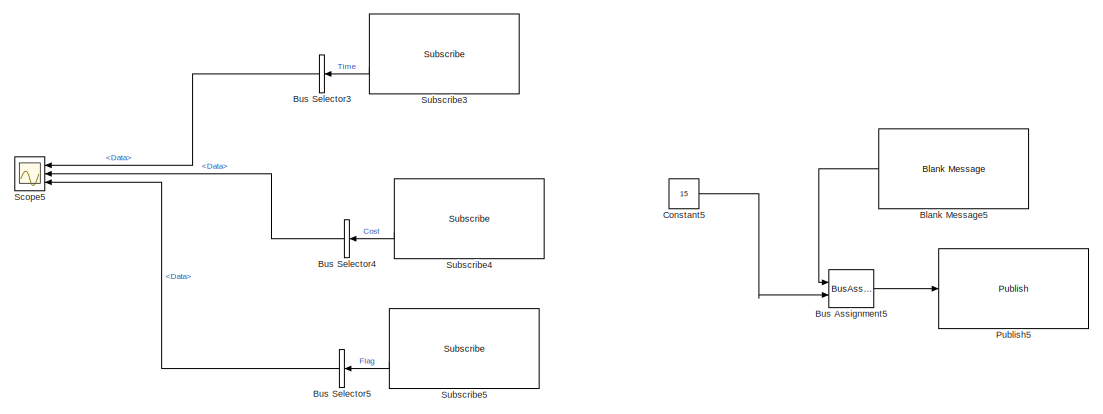
[diagram: root canvas - part 1/5, top center region]
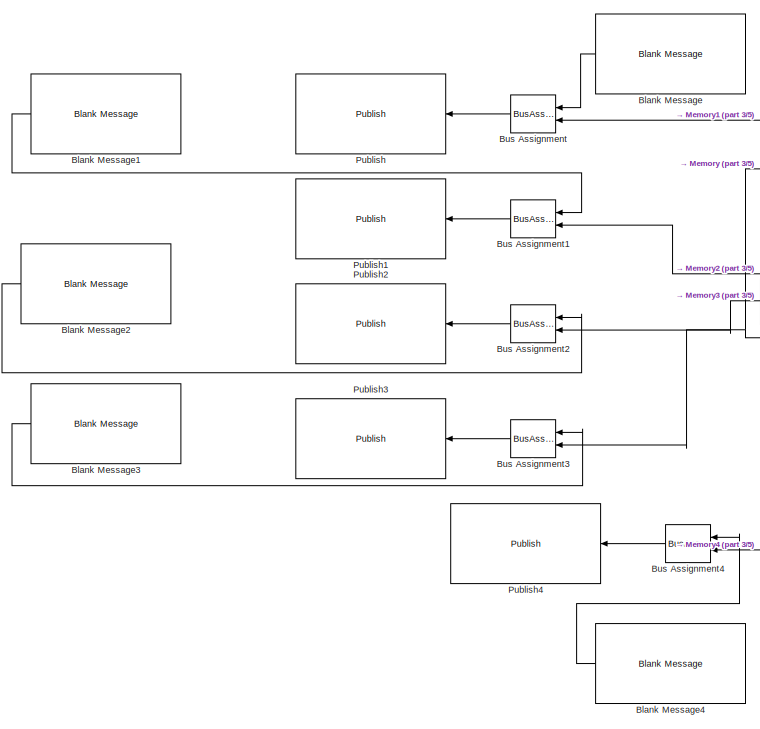
[diagram: root canvas - part 2/5, middle left region]
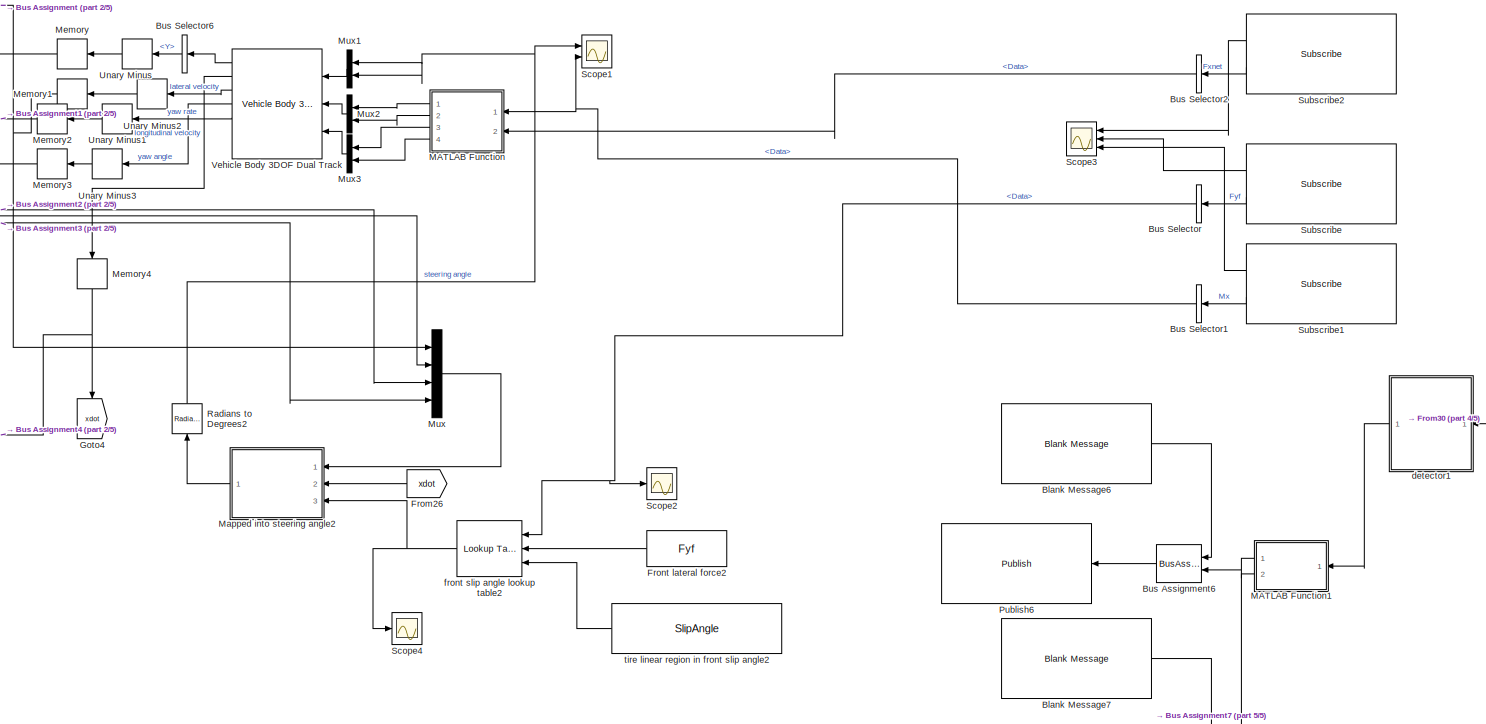
[diagram: root canvas - part 3/5, central region]
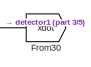
[diagram: root canvas - part 4/5, bottom right region]
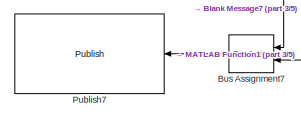
[diagram: root canvas - part 5/5, bottom right region]
MODEL slx_8d183aeda231
KIND model
CONFIG AbsTol = auto
CONFIG EnableMultiTasking = off
CONFIG FixedStep = auto
CONFIG MaxStep = auto
CONFIG MinStep = auto
CONFIG RelTol = 1e-3
CONFIG SampleTimeConstraint = Unconstrained
CONFIG SolverName = VariableStepAuto
CONFIG StartTime = 0.0
CONFIG StopTime = 10.0
BLOCK [Reference] Blank Message  REF=robotlib/Blank Message
  Ports = [0, 1]
  SourceBlock = robotlib/Blank Message
  SourceProductBaseCode = RR
  SourceType = ROS Blank Message
BLOCK [Reference] Blank Message1  REF=robotlib/Blank Message
  Ports = [0, 1]
  SourceBlock = robotlib/Blank Message
  SourceProductBaseCode = RR
  SourceType = ROS Blank Message
BLOCK [Reference] Blank Message2  REF=robotlib/Blank Message
  Ports = [0, 1]
  SourceBlock = robotlib/Blank Message
  SourceProductBaseCode = RR
  SourceType = ROS Blank Message
BLOCK [Reference] Blank Message3  REF=robotlib/Blank Message
  Ports = [0, 1]
  SourceBlock = robotlib/Blank Message
  SourceProductBaseCode = RR
  SourceType = ROS Blank Message
BLOCK [Reference] Blank Message4  REF=robotlib/Blank Message
  Ports = [0, 1]
  SourceBlock = robotlib/Blank Message
  SourceProductBaseCode = RR
  SourceType = ROS Blank Message
BLOCK [Reference] Blank Message5  REF=robotlib/Blank Message
  Ports = [0, 1]
  SourceBlock = robotlib/Blank Message
  SourceProductBaseCode = RR
  SourceType = ROS Blank Message
BLOCK [Reference] Blank Message6  REF=robotlib/Blank Message
  Ports = [0, 1]
  SourceBlock = robotlib/Blank Message
  SourceProductBaseCode = RR
  SourceType = ROS Blank Message
BLOCK [Reference] Blank Message7  REF=robotlib/Blank Message
  Ports = [0, 1]
  SourceBlock = robotlib/Blank Message
  SourceProductBaseCode = RR
  SourceType = ROS Blank Message
BLOCK [BusAssignment] Bus Assignment
  AssignedSignals = Data
  Ports = [2, 1]
BLOCK [BusAssignment] Bus Assignment1
  AssignedSignals = Data
  Ports = [2, 1]
BLOCK [BusAssignment] Bus Assignment2
  AssignedSignals = Data
  Ports = [2, 1]
BLOCK [BusAssignment] Bus Assignment3
  AssignedSignals = Data
  Ports = [2, 1]
BLOCK [BusAssignment] Bus Assignment4
  AssignedSignals = Data
  Ports = [2, 1]
BLOCK [BusAssignment] Bus Assignment5
  AssignedSignals = Data
  Ports = [2, 1]
BLOCK [BusAssignment] Bus Assignment6
  AssignedSignals = Data
  Ports = [2, 1]
BLOCK [BusAssignment] Bus Assignment7
  AssignedSignals = Data
  Ports = [2, 1]
BLOCK [BusSelector] Bus Selector
  OutputSignals = Data
  Ports = [1, 1]
BLOCK [BusSelector] Bus Selector1
  OutputSignals = Data
  Ports = [1, 1]
BLOCK [BusSelector] Bus Selector2
  OutputSignals = Data
  Ports = [1, 1]
BLOCK [BusSelector] Bus Selector3
  OutputSignals = Data
  Ports = [1, 1]
BLOCK [BusSelector] Bus Selector4
  OutputSignals = Data
  Ports = [1, 1]
BLOCK [BusSelector] Bus Selector5
  OutputSignals = Data
  Ports = [1, 1]
BLOCK [BusSelector] Bus Selector6
  OutputSignals = InertFrm.Cg.Disp.Y
  Ports = [1, 1]
BLOCK [Constant] Constant5
  Value = 15
BLOCK [From] From26
  GotoTag = xdot
BLOCK [From] From30
  GotoTag = xdot
BLOCK [Constant] Front lateral force2
  Value = Fyf
BLOCK [Goto] Goto4
  GotoTag = xdot
  NameLocation = left
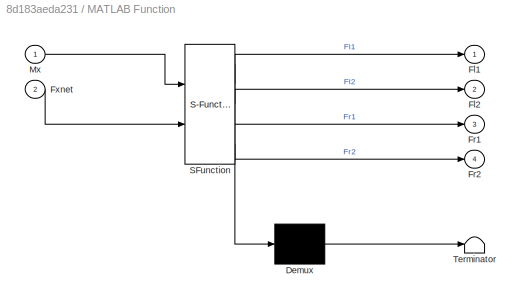
BLOCK [SubSystem] MATLAB Function
  ErrorFcn = Stateflow.Translate.translate
  PermitHierarchicalResolution = ExplicitOnly
  Ports = [2, 4]
  RequestExecContextInheritance = off
  SFBlockType = MATLAB Function
  TreatAsAtomicUnit = on
BLOCK [Demux] MATLAB Function/ Demux 
  Outputs = 1
  Ports = [1, 1]
BLOCK [S-Function] MATLAB Function/ SFunction 
  EnableBusSupport = on
  FunctionName = sf_sfun
  PortCounts = [2 5]
  Ports = [2, 5]
  SFcnIsStateOwnerBlock = off
  SFunctionDeploymentMode = off
  Tag = Stateflow S-Function 16
BLOCK [Terminator] MATLAB Function/ Terminator 
BLOCK [Outport] MATLAB Function/Fl1
BLOCK [Outport] MATLAB Function/Fl2
  Port = 2
BLOCK [Outport] MATLAB Function/Fr1
  Port = 3
BLOCK [Outport] MATLAB Function/Fr2
  Port = 4
BLOCK [Inport] MATLAB Function/Fxnet
  Port = 2
BLOCK [Inport] MATLAB Function/Mx
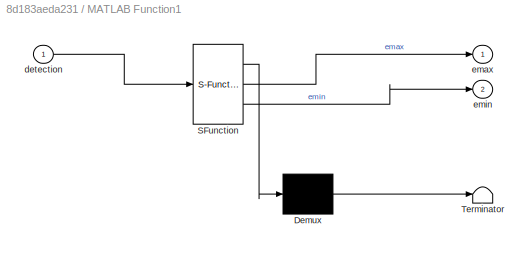
BLOCK [SubSystem] MATLAB Function1
  ErrorFcn = Stateflow.Translate.translate
  PermitHierarchicalResolution = ExplicitOnly
  Ports = [1, 2]
  RequestExecContextInheritance = off
  SFBlockType = MATLAB Function
  TreatAsAtomicUnit = on
BLOCK [Demux] MATLAB Function1/ Demux 
  Outputs = 1
  Ports = [1, 1]
BLOCK [S-Function] MATLAB Function1/ SFunction 
  EnableBusSupport = on
  FunctionName = sf_sfun
  PortCounts = [1 3]
  Ports = [1, 3]
  SFcnIsStateOwnerBlock = off
  SFunctionDeploymentMode = off
  Tag = Stateflow S-Function 2
BLOCK [Terminator] MATLAB Function1/ Terminator 
BLOCK [Inport] MATLAB Function1/detection
BLOCK [Outport] MATLAB Function1/emax
BLOCK [Outport] MATLAB Function1/emin
  Port = 2
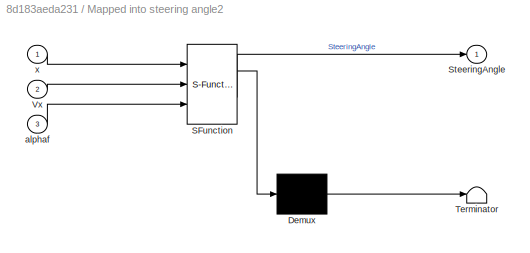
BLOCK [SubSystem] Mapped into steering angle2
  ErrorFcn = Stateflow.Translate.translate
  PermitHierarchicalResolution = ExplicitOnly
  Ports = [3, 1]
  RequestExecContextInheritance = off
  SFBlockType = MATLAB Function
  TreatAsAtomicUnit = on
BLOCK [Demux] Mapped into steering angle2/ Demux 
  Outputs = 1
  Ports = [1, 1]
BLOCK [S-Function] Mapped into steering angle2/ SFunction 
  EnableBusSupport = on
  FunctionName = sf_sfun
  PortCounts = [3 2]
  Ports = [3, 2]
  SFcnIsStateOwnerBlock = off
  SFunctionDeploymentMode = off
  Tag = Stateflow S-Function 13
BLOCK [Terminator] Mapped into steering angle2/ Terminator 
BLOCK [Outport] Mapped into steering angle2/SteeringAngle
BLOCK [Inport] Mapped into steering angle2/Vx
  Port = 2
BLOCK [Inport] Mapped into steering angle2/alphaf
  Port = 3
BLOCK [Inport] Mapped into steering angle2/x
BLOCK [Memory] Memory
BLOCK [Memory] Memory1
BLOCK [Memory] Memory2
BLOCK [Memory] Memory3
BLOCK [Memory] Memory4
  InitialCondition = 15
  NameLocation = right
BLOCK [Mux] Mux
  DisplayOption = bar
  Ports = [4, 1]
BLOCK [Mux] Mux1
  DisplayOption = bar
  Inputs = 2
  Ports = [2, 1]
BLOCK [Mux] Mux2
  DisplayOption = bar
  Inputs = 2
  Ports = [2, 1]
BLOCK [Mux] Mux3
  DisplayOption = bar
  Inputs = 2
  Ports = [2, 1]
BLOCK [Reference] Publish  REF=robotlib/Publish
  Ports = [1]
  SourceBlock = robotlib/Publish
  SourceProductBaseCode = RR
  SourceType = ROS Publish
BLOCK [Reference] Publish1  REF=robotlib/Publish
  Ports = [1]
  SourceBlock = robotlib/Publish
  SourceProductBaseCode = RR
  SourceType = ROS Publish
BLOCK [Reference] Publish2  REF=robotlib/Publish
  Ports = [1]
  SourceBlock = robotlib/Publish
  SourceProductBaseCode = RR
  SourceType = ROS Publish
BLOCK [Reference] Publish3  REF=robotlib/Publish
  Ports = [1]
  SourceBlock = robotlib/Publish
  SourceProductBaseCode = RR
  SourceType = ROS Publish
BLOCK [Reference] Publish4  REF=robotlib/Publish
  Ports = [1]
  SourceBlock = robotlib/Publish
  SourceProductBaseCode = RR
  SourceType = ROS Publish
BLOCK [Reference] Publish5  REF=robotlib/Publish
  Ports = [1]
  SourceBlock = robotlib/Publish
  SourceProductBaseCode = RR
  SourceType = ROS Publish
BLOCK [Reference] Publish6  REF=robotlib/Publish
  Ports = [1]
  SourceBlock = robotlib/Publish
  SourceProductBaseCode = RR
  SourceType = ROS Publish
BLOCK [Reference] Publish7  REF=robotlib/Publish
  Ports = [1]
  SourceBlock = robotlib/Publish
  SourceProductBaseCode = RR
  SourceType = ROS Publish
BLOCK [Reference] Radians to Degrees2  REF=simulink_extras/Transformations/Radians
to Degrees
  NameLocation = left
  Ports = [1, 1]
  SourceBlock = simulink_extras/Transformations/Radians\nto Degrees
  SourceProductBaseCode = SL
  SourceType = RadiansToDegrees
BLOCK [Scope] Scope1
  Floating = off
  NumInputPorts = 2
  Ports = [2]
  ScopeSpecificationString = Simulink.scopes.TimeScopeBlockCfg('CurrentConfiguration', extmgr.ConfigurationSet(extmgr.Configuration('Core','General UI',true),extmgr.Configuration('Core','Source UI',true),extmgr.Configuration('Sources','WiredSimulink',true,'DataLoggingVariableName','ScopeData2'),extmgr.Configuration('Visuals','Time Domain',true,'SerializedDisplays',{struct('MinYLimReal','3.9907','MaxYLimReal','8.20549','YLabel...<+2048ch>
BLOCK [Scope] Scope2
  Floating = off
  NumInputPorts = 1
  Ports = [1]
  ScopeSpecificationString = Simulink.scopes.TimeScopeBlockCfg('CurrentConfiguration', extmgr.ConfigurationSet(extmgr.Configuration('Core','General UI',true),extmgr.Configuration('Core','Source UI',true),extmgr.Configuration('Sources','WiredSimulink',true,'DataLoggingVariableName','ScopeData3'),extmgr.Configuration('Visuals','Time Domain',true,'SerializedDisplays',{struct('MinYLimReal','-11062.39515','MaxYLimReal','12073.7571...<+1428ch>
BLOCK [Scope] Scope3
  Floating = off
  NumInputPorts = 3
  Ports = [3]
  ScopeSpecificationString = Simulink.scopes.TimeScopeBlockCfg('CurrentConfiguration', extmgr.ConfigurationSet(extmgr.Configuration('Core','General UI',true),extmgr.Configuration('Core','Source UI',true),extmgr.Configuration('Sources','WiredSimulink',true,'DataLoggingVariableName','ScopeData4'),extmgr.Configuration('Visuals','Time Domain',true,'SerializedDisplays',{struct('MinYLimReal','-1.00000','MaxYLimReal','1.00000','YLab...<+2801ch>
BLOCK [Scope] Scope4
  Floating = off
  NumInputPorts = 1
  Ports = [1]
  ScopeSpecificationString = Simulink.scopes.TimeScopeBlockCfg('CurrentConfiguration', extmgr.ConfigurationSet(extmgr.Configuration('Core','General UI',true),extmgr.Configuration('Core','Source UI',true),extmgr.Configuration('Sources','WiredSimulink',true,'DataLoggingVariableName','ScopeData5'),extmgr.Configuration('Visuals','Time Domain',true,'SerializedDisplays',{struct('MinYLimReal','-0.08701','MaxYLimReal','-0.06701','YLa...<+1424ch>
BLOCK [Scope] Scope5
  Floating = off
  NumInputPorts = 3
  Ports = [3]
  ScopeSpecificationString = Simulink.scopes.TimeScopeBlockCfg('CurrentConfiguration', extmgr.ConfigurationSet(extmgr.Configuration('Core','General UI',true),extmgr.Configuration('Core','Source UI',true),extmgr.Configuration('Sources','WiredSimulink',true,'DataLoggingVariableName','ScopeData6'),extmgr.Configuration('Visuals','Time Domain',true,'SerializedDisplays',{struct('MinYLimReal','0.00462','MaxYLimReal','0.02831','YLabe...<+2747ch>
BLOCK [Reference] Subscribe  REF=robotlib/Subscribe
  Ports = [0, 2]
  SourceBlock = robotlib/Subscribe
  SourceProductBaseCode = RR
  SourceType = ROS Subscribe
BLOCK [Reference] Subscribe1  REF=robotlib/Subscribe
  Ports = [0, 2]
  SourceBlock = robotlib/Subscribe
  SourceProductBaseCode = RR
  SourceType = ROS Subscribe
BLOCK [Reference] Subscribe2  REF=robotlib/Subscribe
  Ports = [0, 2]
  SourceBlock = robotlib/Subscribe
  SourceProductBaseCode = RR
  SourceType = ROS Subscribe
BLOCK [Reference] Subscribe3  REF=robotlib/Subscribe
  Ports = [0, 2]
  SourceBlock = robotlib/Subscribe
  SourceProductBaseCode = RR
  SourceType = ROS Subscribe
BLOCK [Reference] Subscribe4  REF=robotlib/Subscribe
  Ports = [0, 2]
  SourceBlock = robotlib/Subscribe
  SourceProductBaseCode = RR
  SourceType = ROS Subscribe
BLOCK [Reference] Subscribe5  REF=robotlib/Subscribe
  Ports = [0, 2]
  SourceBlock = robotlib/Subscribe
  SourceProductBaseCode = RR
  SourceType = ROS Subscribe
BLOCK [UnaryMinus] Unary Minus
BLOCK [UnaryMinus] Unary Minus1
BLOCK [UnaryMinus] Unary Minus2
BLOCK [UnaryMinus] Unary Minus3
BLOCK [Reference] Vehicle Body 3DOF Dual Track  REF=autolibshared/Vehicle Body 3DOF Single Track
  Ports = [3, 7]
  SourceBlock = autolibshared/Vehicle Body 3DOF Single Track
  SourceProductBaseCode = PW,DR,MT,UV,VE
  SourceType = Vehicle Body 3DOF Lateral
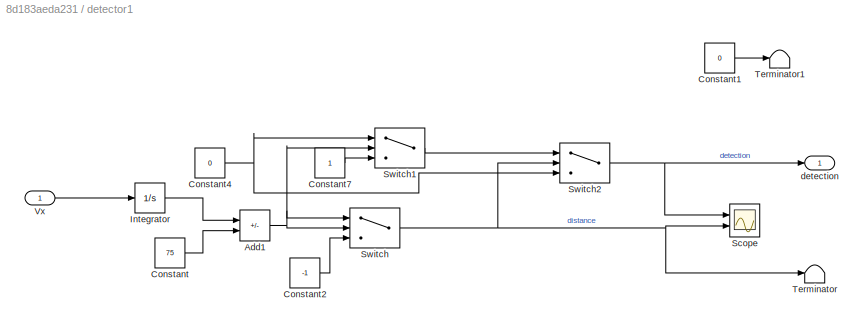
BLOCK [SubSystem] detector1
  Ports = [1, 1]
  RequestExecContextInheritance = off
BLOCK [Sum] detector1/Add1
  IconShape = rectangular
  Inputs = -+
  Ports = [2, 1]
BLOCK [Constant] detector1/Constant
  Value = 75
BLOCK [Constant] detector1/Constant1
  Value = 0
BLOCK [Constant] detector1/Constant2
  Value = -1
BLOCK [Constant] detector1/Constant4
  Value = 0
BLOCK [Constant] detector1/Constant7
BLOCK [Integrator] detector1/Integrator
  Ports = [1, 1]
BLOCK [Scope] detector1/Scope
  Floating = off
  NumInputPorts = 2
  Ports = [2]
  ScopeSpecificationString = Simulink.scopes.TimeScopeBlockCfg('CurrentConfiguration', extmgr.ConfigurationSet(extmgr.Configuration('Core','General UI',true),extmgr.Configuration('Core','Source UI',true),extmgr.Configuration('Sources','WiredSimulink',true),extmgr.Configuration('Visuals','Time Domain',true,'SerializedDisplays',{struct('MinYLimReal','-1.00000','MaxYLimReal','1.00000','YLabelReal','','MinYLimMag','0.00000','MaxY...<+2003ch>
BLOCK [Switch] detector1/Switch
  Criteria = u2 > Threshold
  InputSameDT = off
  SaturateOnIntegerOverflow = off
BLOCK [Switch] detector1/Switch1
  Criteria = u2 > Threshold
  InputSameDT = off
  SaturateOnIntegerOverflow = off
  Threshold = 50
BLOCK [Switch] detector1/Switch2
  Criteria = u2 > Threshold
  InputSameDT = off
  SaturateOnIntegerOverflow = off
BLOCK [Terminator] detector1/Terminator
BLOCK [Terminator] detector1/Terminator1
BLOCK [Inport] detector1/Vx
BLOCK [Outport] detector1/detection
BLOCK [Reference] front slip angle lookup table2  REF=simulink/Lookup
Tables/Lookup
Table
Dynamic
  Ports = [3, 1]
  SourceBlock = simulink/Lookup\nTables/Lookup\nTable\nDynamic
  SourceProductBaseCode = SL
  SourceType = Lookup Table Dynamic
BLOCK [Constant] tire linear region in front slip angle2
  Value = SlipAngle
LINE Blank Message1:1 -> Bus Assignment1:1
LINE Blank Message2:1 -> Bus Assignment2:1
LINE Blank Message3:1 -> Bus Assignment3:1
LINE Blank Message4:1 -> Bus Assignment4:1
LINE Blank Message5:1 -> Bus Assignment5:1
LINE Blank Message6:1 -> Bus Assignment6:1
LINE Blank Message7:1 -> Bus Assignment7:1
LINE Blank Message:1 -> Bus Assignment:1
LINE Bus Assignment1:1 -> Publish1:1
LINE Bus Assignment2:1 -> Publish2:1
LINE Bus Assignment3:1 -> Publish3:1
LINE Bus Assignment4:1 -> Publish4:1
LINE Bus Assignment5:1 -> Publish5:1
LINE Bus Assignment6:1 -> Publish6:1
LINE Bus Assignment7:1 -> Publish7:1
LINE Bus Assignment:1 -> Publish:1
NET Bus Selector1:1 -> MATLAB Function:1, Scope1:2
LINE Bus Selector2:1 -> MATLAB Function:2
LINE Bus Selector3:1 -> Scope5:1
LINE Bus Selector4:1 -> Scope5:2
LINE Bus Selector5:1 -> Scope5:3
LINE Bus Selector6:1 -> Unary Minus:1
NET Bus Selector:1 -> Scope2:1, front slip angle lookup table2:1
LINE Constant5:1 -> Bus Assignment5:2
LINE From26:1 -> Mapped into steering angle2:2
LINE From30:1 -> detector1:1
LINE Front lateral force2:1 -> front slip angle lookup table2:2
LINE MATLAB Function1:1 -> Bus Assignment6:2
LINE MATLAB Function1:2 -> Bus Assignment7:2
LINE MATLAB Function:1 -> Mux2:1
LINE MATLAB Function:2 -> Mux2:2
LINE MATLAB Function:3 -> Mux3:1
LINE MATLAB Function:4 -> Mux3:2
LINE Mapped into steering angle2:1 -> Radians to Degrees2:1
NET Memory1:1 -> Bus Assignment:2, Mux:1
NET Memory2:1 -> Bus Assignment1:2, Mux:2
NET Memory3:1 -> Bus Assignment2:2, Mux:3
NET Memory4:1 -> Bus Assignment4:2, Goto4:1
NET Memory:1 -> Bus Assignment3:2, Mux:4
LINE Mux1:1 -> Vehicle Body 3DOF Dual Track:1
LINE Mux2:1 -> Vehicle Body 3DOF Dual Track:2
LINE Mux3:1 -> Vehicle Body 3DOF Dual Track:3
LINE Mux:1 -> Mapped into steering angle2:1
NET Radians to Degrees2:1 -> Mux1:1, Mux1:2, Scope1:1
LINE Subscribe1:1 -> Scope3:3
LINE Subscribe1:2 -> Bus Selector1:1
LINE Subscribe2:1 -> Scope3:1
LINE Subscribe2:2 -> Bus Selector2:1
LINE Subscribe3:2 -> Bus Selector3:1
LINE Subscribe4:2 -> Bus Selector4:1
LINE Subscribe5:2 -> Bus Selector5:1
LINE Subscribe:1 -> Scope3:2
LINE Subscribe:2 -> Bus Selector:1
LINE Unary Minus1:1 -> Memory2:1
LINE Unary Minus2:1 -> Memory1:1
LINE Unary Minus3:1 -> Memory3:1
LINE Unary Minus:1 -> Memory:1
LINE Vehicle Body 3DOF Dual Track:1 -> Bus Selector6:1
LINE Vehicle Body 3DOF Dual Track:2 -> Memory4:1
LINE Vehicle Body 3DOF Dual Track:3 -> Unary Minus2:1
LINE Vehicle Body 3DOF Dual Track:4 -> Unary Minus3:1
LINE Vehicle Body 3DOF Dual Track:5 -> Unary Minus1:1
NET detector1/Add1:1 -> detector1/Switch1:2, detector1/Switch:1, detector1/Switch:2
LINE detector1/Constant1:1 -> detector1/Terminator1:1
LINE detector1/Constant2:1 -> detector1/Switch:3
NET detector1/Constant4:1 -> detector1/Switch1:1, detector1/Switch2:3
LINE detector1/Constant7:1 -> detector1/Switch1:3
LINE detector1/Constant:1 -> detector1/Add1:2
LINE detector1/Integrator:1 -> detector1/Add1:1
LINE detector1/Switch1:1 -> detector1/Switch2:1
NET detector1/Switch2:1 -> detector1/Scope:1, detector1/detection:1
NET detector1/Switch:1 -> detector1/Scope:2, detector1/Switch2:2, detector1/Terminator:1
LINE detector1/Vx:1 -> detector1/Integrator:1
LINE detector1:1 -> MATLAB Function1:1
NET front slip angle lookup table2:1 -> Mapped into steering angle2:3, Scope4:1
LINE tire linear region in front slip angle2:1 -> front slip angle lookup table2:3
note: NET lines group one-source signal fan-out (src -> all destinations, sorted); 1:1 wires keep LINE
CHART MATLAB Function1 states=1 transitions=1
  STATE_LABEL 'eML_blk_kernel()'
  STATE_LABEL 'SCRIPT:\nfunction [emax,emin] = fcn(detection)\n\nif detection\n    emax=6;\n    emin=4;\nelse\n    emax=10;\n    emin=-10;\nend\n    \n'
CHART Mapped into steering angle2 states=1 transitions=1
  STATE_LABEL 'eML_blk_kernel()'
  STATE_LABEL 'SCRIPT:\nfunction SteeringAngle = fcn(x,Vx, alphaf)\n\nlf = 1.11;  % distance from front axle to the mass center\n\nVy = x(1); %lateral velocity\nr = x(2);  %yaw rate\nSteeringAngle = Vy/Vx+lf*r/Vx-alphaf;\n\n'
CHART MATLAB Function states=1 transitions=1
  STATE_LABEL 'eML_blk_kernel()'
  STATE_LABEL 'SCRIPT:\nfunction [Fl1,Fl2,Fr1,Fr2] = fcn(Mx,Fxnet)\n\nw = 1.875; % the width of the car\n\nFwf = zeros(2,1);\nFwr = zeros(2,1);\n\nif Mx > 0\n    Fwf(1) = Fxnet/2+0;\n    Fwf(2) = Fxnet/2-Mx/w;\n    Fwr(1) = 0;\n    Fwr(2) = -Mx/w;\nelseif Mx < 0\n    Fwf(1) = Fxnet/2+Mx/w;\n    Fwf(2) = Fxnet/2+0;\n    Fwr(1) = Mx/w;\n    Fwr(2) = 0;\nelse\n    Fwf(1) = Fxnet/2+0;\n    Fwf(2) = Fxnet/2+0;\n    Fwr(1) = 0;\n    Fwr(2)...<+66ch>'
CHART  states=0 transitions=0
CHART  states=0 transitions=0
CHART  states=0 transitions=0
